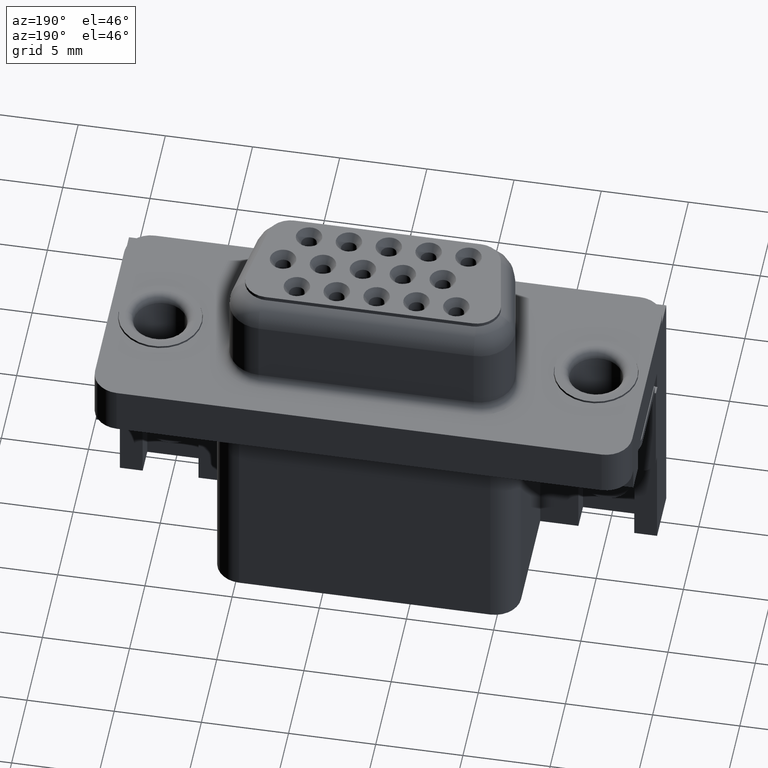
[diagram: clean part render]
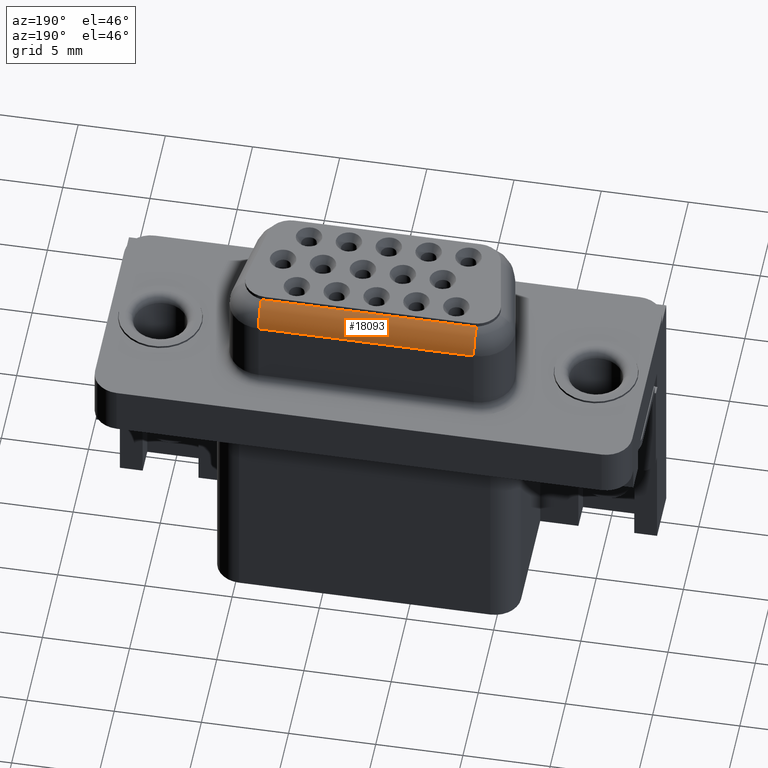
[diagram: same view with one face highlighted and labeled with its STEP entity id]
A machine part, auxiliary view. The second image highlights one B-rep face of the part: STEP entity #18093.
In plain terms, the highlighted cylindrical surface (edge-blend (fillet) strip) has radius 1.75 mm, axis along (-1, 0, 0).
Its self-contained STEP definition (entity closure, byte-faithful):
#466 = CYLINDRICAL_SURFACE ( 'NONE', #2916, 1.749999999999999800 ) ;
#1219 = ORIENTED_EDGE ( 'NONE', *, *, #31016, .T. ) ;
#1223 = ORIENTED_EDGE ( 'NONE', *, *, #20981, .T. ) ;
#1227 = FACE_OUTER_BOUND ( 'NONE', #19727, .T. ) ;
#1433 = CARTESIAN_POINT ( 'NONE',  ( 6.529999999999987800, 3.100000000000001000, 6.150833101980365000 ) ) ;
#2916 = AXIS2_PLACEMENT_3D ( 'NONE', #8780, #6343, #18538 ) ;
#3682 = CARTESIAN_POINT ( 'NONE',  ( 18.65999999999998900, 3.085102992281872700, 6.159666417806821700 ) ) ;
#3901 = B_SPLINE_CURVE_WITH_KNOTS ( 'NONE', 3,
 ( #25550, #10946, #18343, #3682 ),
 .UNSPECIFIED., .F., .F.,
 ( 4, 4 ),
 ( 0.0000000000000000000, 0.0002007484702493304900 ),
 .UNSPECIFIED. ) ;
#4013 = AXIS2_PLACEMENT_3D ( 'NONE', #7932, #25004, #10392 ) ;
#4656 = ORIENTED_EDGE ( 'NONE', *, *, #24466, .T. ) ;
#4694 = LINE ( 'NONE', #23855, #23841 ) ;
#5441 = EDGE_CURVE ( 'NONE', #29499, #26854, #10690, .T. ) ;
#6033 = VERTEX_POINT ( 'NONE', #30614 ) ;
#6343 = DIRECTION ( 'NONE',  ( -1.000000000000000000, 0.0000000000000000000, 0.0000000000000000000 ) ) ;
#7932 = CARTESIAN_POINT ( 'NONE',  ( 18.65999999999998900, 2.199999999999998800, 4.650000000000000400 ) ) ;
#8718 = CARTESIAN_POINT ( 'NONE',  ( 6.396171561094093700, 3.095015570034543600, 6.153854768208852000 ) ) ;
#8780 = CARTESIAN_POINT ( 'NONE',  ( 17.97232477523699900, 2.200000000000002400, 4.650000000000000400 ) ) ;
#8991 = B_SPLINE_CURVE_WITH_KNOTS ( 'NONE', 3,
 ( #25791, #8718, #16127, #1433 ),
 .UNSPECIFIED., .F., .F.,
 ( 4, 4 ),
 ( 0.0000000000000000000, 0.0002007484702493279200 ),
 .UNSPECIFIED. ) ;
#9063 = CIRCLE ( 'NONE', #26172, 1.749999999999999800 ) ;
#9213 = CARTESIAN_POINT ( 'NONE',  ( 18.65999999999998900, 3.085102992281872700, 6.159666417806821700 ) ) ;
#9239 = DIRECTION ( 'NONE',  ( 1.000000000000000000, -0.0000000000000000000, -0.0000000000000000000 ) ) ;
#9486 = ORIENTED_EDGE ( 'NONE', *, *, #5441, .F. ) ;
#9756 = EDGE_CURVE ( 'NONE', #30056, #26854, #15522, .T. ) ;
#10392 = DIRECTION ( 'NONE',  ( 0.0000000000000000000, 0.0000000000000000000, 1.000000000000000000 ) ) ;
#10608 = ORIENTED_EDGE ( 'NONE', *, *, #9756, .T. ) ;
#10690 = LINE ( 'NONE', #25923, #29451 ) ;
#10946 = CARTESIAN_POINT ( 'NONE',  ( 18.52716658051239300, 3.100000000000004500, 6.150833101980363300 ) ) ;
#11761 = DIRECTION ( 'NONE',  ( 1.000000000000000000, 0.0000000000000000000, 0.0000000000000000000 ) ) ;
#12120 = CARTESIAN_POINT ( 'NONE',  ( 18.65999999999998900, 3.949999999999998800, 4.650000000000000400 ) ) ;
#15522 = CIRCLE ( 'NONE', #4013, 1.749999999999999800 ) ;
#16127 = CARTESIAN_POINT ( 'NONE',  ( 6.462833419487580500, 3.100000000000001000, 6.150833101980365000 ) ) ;
#16146 = DIRECTION ( 'NONE',  ( 1.000000000000000000, -0.0000000000000000000, -0.0000000000000000000 ) ) ;
#16224 = CARTESIAN_POINT ( 'NONE',  ( 6.329999999999985900, 3.950000000000002000, 4.650000000000000400 ) ) ;
#18093 = ADVANCED_FACE ( 'NONE', ( #1227 ), #466, .T. ) ;
#18343 = CARTESIAN_POINT ( 'NONE',  ( 18.59382843890588100, 3.095015570034547200, 6.153854768208849400 ) ) ;
#18538 = DIRECTION ( 'NONE',  ( 0.0000000000000000000, 0.0000000000000000000, 1.000000000000000000 ) ) ;
#19388 = VERTEX_POINT ( 'NONE', #20499 ) ;
#19727 = EDGE_LOOP ( 'NONE', ( #1219, #20896, #10608, #9486, #4656, #1223 ) ) ;
#20499 = CARTESIAN_POINT ( 'NONE',  ( 6.329999999999985000, 3.085102992281869100, 6.159666417806823400 ) ) ;
#20896 = ORIENTED_EDGE ( 'NONE', *, *, #26532, .T. ) ;
#20981 = EDGE_CURVE ( 'NONE', #19388, #6033, #8991, .T. ) ;
#23841 = VECTOR ( 'NONE', #9239, 1000.000000000000000 ) ;
#23855 = CARTESIAN_POINT ( 'NONE',  ( 17.97232477523699900, 3.100000000000001000, 6.150833101980365000 ) ) ;
#24466 = EDGE_CURVE ( 'NONE', #29499, #19388, #9063, .T. ) ;
#24739 = VERTEX_POINT ( 'NONE', #25700 ) ;
#25004 = DIRECTION ( 'NONE',  ( -1.000000000000000000, 0.0000000000000000000, 0.0000000000000000000 ) ) ;
#25550 = CARTESIAN_POINT ( 'NONE',  ( 18.45999999999998300, 3.100000000000004500, 6.150833101980365000 ) ) ;
#25700 = CARTESIAN_POINT ( 'NONE',  ( 18.45999999999998300, 3.100000000000004500, 6.150833101980365000 ) ) ;
#25791 = CARTESIAN_POINT ( 'NONE',  ( 6.329999999999985000, 3.085102992281869100, 6.159666417806823400 ) ) ;
#25923 = CARTESIAN_POINT ( 'NONE',  ( 6.329999999999985900, 3.950000000000002000, 4.650000000000000400 ) ) ;
#26172 = AXIS2_PLACEMENT_3D ( 'NONE', #26388, #11761, #28872 ) ;
#26388 = CARTESIAN_POINT ( 'NONE',  ( 6.329999999999985900, 2.200000000000002400, 4.650000000000000400 ) ) ;
#26532 = EDGE_CURVE ( 'NONE', #24739, #30056, #3901, .T. ) ;
#26854 = VERTEX_POINT ( 'NONE', #12120 ) ;
#28872 = DIRECTION ( 'NONE',  ( 0.0000000000000000000, 0.0000000000000000000, -1.000000000000000000 ) ) ;
#29451 = VECTOR ( 'NONE', #16146, 1000.000000000000000 ) ;
#29499 = VERTEX_POINT ( 'NONE', #16224 ) ;
#30056 = VERTEX_POINT ( 'NONE', #9213 ) ;
#30614 = CARTESIAN_POINT ( 'NONE',  ( 6.529999999999987800, 3.100000000000001000, 6.150833101980365000 ) ) ;
#31016 = EDGE_CURVE ( 'NONE', #6033, #24739, #4694, .T. ) ;